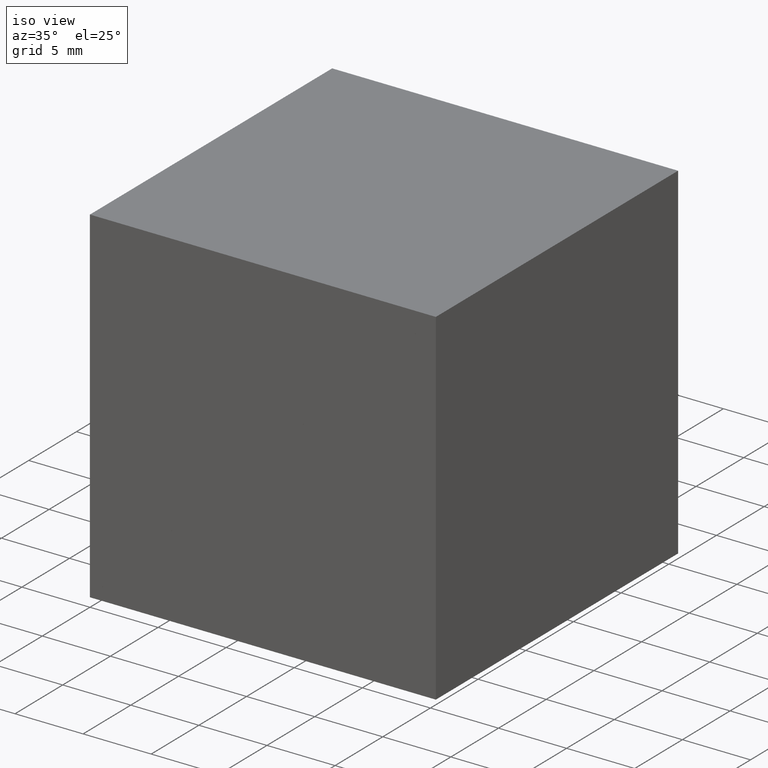
[diagram: clean part render]
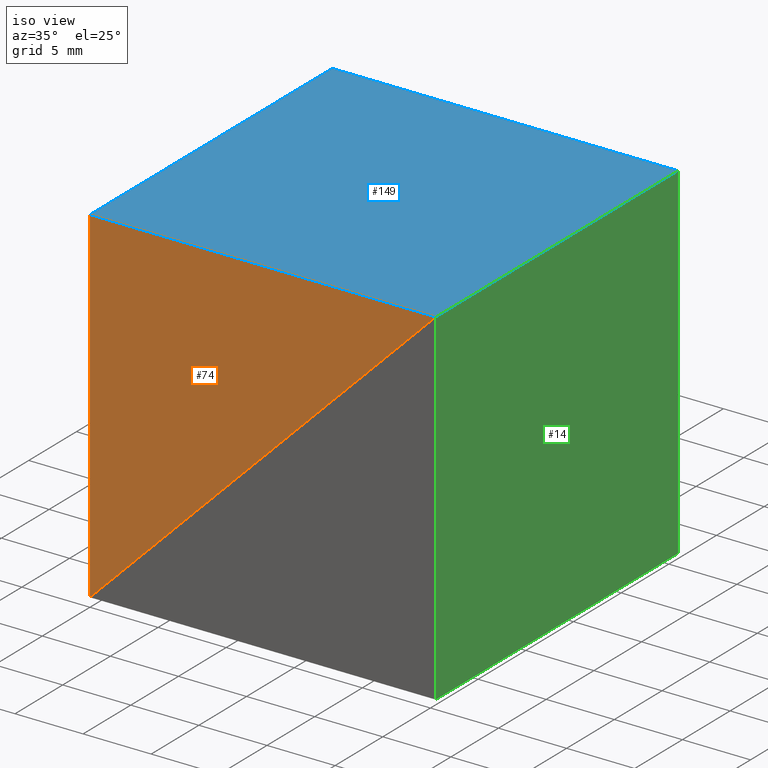
[diagram: same view with three faces highlighted in distinct colors, each labeled with its STEP entity id]
A machine part, iso view with three faces highlighted in distinct colors.
Their STEP definitions:

[orange] entity #74 — the highlighted planar face has unit normal (0, -1, -0).
#9 = CARTESIAN_POINT ( 'NONE',  ( 0.0000000000000000000, 0.0000000000000000000, -25.39999999999999900 ) ) ;
#13 = LINE ( 'NONE', #24, #118 ) ;
#19 = CARTESIAN_POINT ( 'NONE',  ( 25.39999999999999900, 0.0000000000000000000, 0.0000000000000000000 ) ) ;
#24 = CARTESIAN_POINT ( 'NONE',  ( 0.0000000000000000000, 0.0000000000000000000, -25.39999999999999900 ) ) ;
#26 = DIRECTION ( 'NONE',  ( -0.0000000000000000000, -0.0000000000000000000, 1.000000000000000000 ) ) ;
#57 = DIRECTION ( 'NONE',  ( 1.000000000000000000, -0.0000000000000000000, -0.0000000000000000000 ) ) ;
#64 = DIRECTION ( 'NONE',  ( -0.7071067811865474600, -0.0000000000000000000, -0.7071067811865474600 ) ) ;
#68 = VERTEX_POINT ( 'NONE', #19 ) ;
#74 = ADVANCED_FACE ( 'NONE', ( #255 ), #126, .T. ) ;
#77 = LINE ( 'NONE', #168, #130 ) ;
#88 = AXIS2_PLACEMENT_3D ( 'NONE', #205, #91, #263 ) ;
#91 = DIRECTION ( 'NONE',  ( 0.0000000000000000000, -1.000000000000000000, -0.0000000000000000000 ) ) ;
#97 = LINE ( 'NONE', #111, #142 ) ;
#107 = VERTEX_POINT ( 'NONE', #9 ) ;
#108 = EDGE_LOOP ( 'NONE', ( #166, #165, #156 ) ) ;
#111 = CARTESIAN_POINT ( 'NONE',  ( 0.0000000000000000000, 0.0000000000000000000, 0.0000000000000000000 ) ) ;
#118 = VECTOR ( 'NONE', #64, 1000.000000000000100 ) ;
#126 = PLANE ( 'NONE',  #88 ) ;
#129 = EDGE_CURVE ( 'NONE', #212, #68, #77, .T. ) ;
#130 = VECTOR ( 'NONE', #57, 1000.000000000000000 ) ;
#142 = VECTOR ( 'NONE', #26, 1000.000000000000000 ) ;
#156 = ORIENTED_EDGE ( 'NONE', *, *, #213, .F. ) ;
#165 = ORIENTED_EDGE ( 'NONE', *, *, #239, .F. ) ;
#166 = ORIENTED_EDGE ( 'NONE', *, *, #129, .F. ) ;
#168 = CARTESIAN_POINT ( 'NONE',  ( 25.39999999999999900, 0.0000000000000000000, 0.0000000000000000000 ) ) ;
#185 = CARTESIAN_POINT ( 'NONE',  ( 0.0000000000000000000, 0.0000000000000000000, 0.0000000000000000000 ) ) ;
#205 = CARTESIAN_POINT ( 'NONE',  ( 0.0000000000000000000, 0.0000000000000000000, 0.0000000000000000000 ) ) ;
#212 = VERTEX_POINT ( 'NONE', #185 ) ;
#213 = EDGE_CURVE ( 'NONE', #68, #107, #13, .T. ) ;
#239 = EDGE_CURVE ( 'NONE', #107, #212, #97, .T. ) ;
#255 = FACE_OUTER_BOUND ( 'NONE', #108, .T. ) ;
#263 = DIRECTION ( 'NONE',  ( 0.0000000000000000000, 0.0000000000000000000, -1.000000000000000000 ) ) ;

[blue] entity #149 — the highlighted planar face has unit normal (0, 0, -1).
#10 = CARTESIAN_POINT ( 'NONE',  ( 25.39999999999999900, 25.39999999999999900, 0.0000000000000000000 ) ) ;
#16 = ORIENTED_EDGE ( 'NONE', *, *, #129, .T. ) ;
#19 = CARTESIAN_POINT ( 'NONE',  ( 25.39999999999999900, 0.0000000000000000000, 0.0000000000000000000 ) ) ;
#23 = LINE ( 'NONE', #250, #203 ) ;
#36 = ORIENTED_EDGE ( 'NONE', *, *, #122, .F. ) ;
#44 = CARTESIAN_POINT ( 'NONE',  ( 25.39999999999999900, 25.39999999999999900, 0.0000000000000000000 ) ) ;
#46 = VECTOR ( 'NONE', #136, 1000.000000000000000 ) ;
#51 = DIRECTION ( 'NONE',  ( 1.000000000000000000, -0.0000000000000000000, -0.0000000000000000000 ) ) ;
#57 = DIRECTION ( 'NONE',  ( 1.000000000000000000, -0.0000000000000000000, -0.0000000000000000000 ) ) ;
#65 = EDGE_LOOP ( 'NONE', ( #16, #36, #191, #208 ) ) ;
#68 = VERTEX_POINT ( 'NONE', #19 ) ;
#77 = LINE ( 'NONE', #168, #130 ) ;
#121 = DIRECTION ( 'NONE',  ( 0.0000000000000000000, 0.0000000000000000000, -1.000000000000000000 ) ) ;
#122 = EDGE_CURVE ( 'NONE', #254, #68, #23, .T. ) ;
#129 = EDGE_CURVE ( 'NONE', #212, #68, #77, .T. ) ;
#130 = VECTOR ( 'NONE', #57, 1000.000000000000000 ) ;
#136 = DIRECTION ( 'NONE',  ( -0.0000000000000000000, -1.000000000000000000, -0.0000000000000000000 ) ) ;
#148 = VECTOR ( 'NONE', #51, 1000.000000000000000 ) ;
#149 = ADVANCED_FACE ( 'NONE', ( #188 ), #150, .F. ) ;
#150 = PLANE ( 'NONE',  #155 ) ;
#155 = AXIS2_PLACEMENT_3D ( 'NONE', #10, #121, #201 ) ;
#160 = LINE ( 'NONE', #225, #148 ) ;
#161 = CARTESIAN_POINT ( 'NONE',  ( 0.0000000000000000000, 25.39999999999999900, 0.0000000000000000000 ) ) ;
#168 = CARTESIAN_POINT ( 'NONE',  ( 25.39999999999999900, 0.0000000000000000000, 0.0000000000000000000 ) ) ;
#175 = EDGE_CURVE ( 'NONE', #291, #254, #160, .T. ) ;
#185 = CARTESIAN_POINT ( 'NONE',  ( 0.0000000000000000000, 0.0000000000000000000, 0.0000000000000000000 ) ) ;
#188 = FACE_OUTER_BOUND ( 'NONE', #65, .T. ) ;
#191 = ORIENTED_EDGE ( 'NONE', *, *, #175, .F. ) ;
#201 = DIRECTION ( 'NONE',  ( -1.000000000000000000, 0.0000000000000000000, -0.0000000000000000000 ) ) ;
#203 = VECTOR ( 'NONE', #296, 1000.000000000000000 ) ;
#208 = ORIENTED_EDGE ( 'NONE', *, *, #218, .T. ) ;
#212 = VERTEX_POINT ( 'NONE', #185 ) ;
#218 = EDGE_CURVE ( 'NONE', #291, #212, #282, .T. ) ;
#225 = CARTESIAN_POINT ( 'NONE',  ( 25.39999999999999900, 25.39999999999999900, 0.0000000000000000000 ) ) ;
#235 = CARTESIAN_POINT ( 'NONE',  ( 0.0000000000000000000, 25.39999999999999900, 0.0000000000000000000 ) ) ;
#250 = CARTESIAN_POINT ( 'NONE',  ( 25.39999999999999900, 25.39999999999999900, 0.0000000000000000000 ) ) ;
#254 = VERTEX_POINT ( 'NONE', #44 ) ;
#282 = LINE ( 'NONE', #235, #46 ) ;
#291 = VERTEX_POINT ( 'NONE', #161 ) ;
#296 = DIRECTION ( 'NONE',  ( -0.0000000000000000000, -1.000000000000000000, -0.0000000000000000000 ) ) ;

[green] entity #14 — the highlighted planar face has unit normal (1, 0, -0).
#14 = ADVANCED_FACE ( 'NONE', ( #228 ), #285, .T. ) ;
#28 = DIRECTION ( 'NONE',  ( 0.0000000000000000000, 0.0000000000000000000, 1.000000000000000000 ) ) ;
#31 = ORIENTED_EDGE ( 'NONE', *, *, #192, .F. ) ;
#32 = CARTESIAN_POINT ( 'NONE',  ( 25.39999999999999900, 0.0000000000000000000, -25.39999999999999900 ) ) ;
#37 = VERTEX_POINT ( 'NONE', #99 ) ;
#39 = LINE ( 'NONE', #151, #145 ) ;
#61 = ORIENTED_EDGE ( 'NONE', *, *, #226, .T. ) ;
#81 = LINE ( 'NONE', #32, #260 ) ;
#99 = CARTESIAN_POINT ( 'NONE',  ( 25.39999999999999900, 0.0000000000000000000, -25.39999999999999900 ) ) ;
#102 = LINE ( 'NONE', #112, #251 ) ;
#110 = EDGE_CURVE ( 'NONE', #197, #248, #132, .T. ) ;
#112 = CARTESIAN_POINT ( 'NONE',  ( 25.39999999999999900, 25.39999999999999900, -25.39999999999999900 ) ) ;
#132 = LINE ( 'NONE', #171, #193 ) ;
#145 = VECTOR ( 'NONE', #247, 1000.000000000000000 ) ;
#151 = CARTESIAN_POINT ( 'NONE',  ( 25.39999999999999900, 25.39999999999999900, -25.39999999999999900 ) ) ;
#157 = EDGE_CURVE ( 'NONE', #37, #248, #81, .T. ) ;
#164 = CARTESIAN_POINT ( 'NONE',  ( 25.39999999999999900, 0.0000000000000000000, 0.0000000000000000000 ) ) ;
#171 = CARTESIAN_POINT ( 'NONE',  ( 25.39999999999999900, 25.39999999999999900, 0.0000000000000000000 ) ) ;
#173 = CARTESIAN_POINT ( 'NONE',  ( 25.39999999999999900, 25.39999999999999900, 0.0000000000000000000 ) ) ;
#178 = DIRECTION ( 'NONE',  ( 0.0000000000000000000, -1.000000000000000000, 0.0000000000000000000 ) ) ;
#180 = DIRECTION ( 'NONE',  ( 1.000000000000000000, 0.0000000000000000000, -0.0000000000000000000 ) ) ;
#182 = ORIENTED_EDGE ( 'NONE', *, *, #157, .F. ) ;
#192 = EDGE_CURVE ( 'NONE', #233, #37, #39, .T. ) ;
#193 = VECTOR ( 'NONE', #178, 1000.000000000000000 ) ;
#197 = VERTEX_POINT ( 'NONE', #173 ) ;
#226 = EDGE_CURVE ( 'NONE', #233, #197, #102, .T. ) ;
#228 = FACE_OUTER_BOUND ( 'NONE', #277, .T. ) ;
#233 = VERTEX_POINT ( 'NONE', #236 ) ;
#236 = CARTESIAN_POINT ( 'NONE',  ( 25.39999999999999900, 25.39999999999999900, -25.39999999999999900 ) ) ;
#247 = DIRECTION ( 'NONE',  ( 0.0000000000000000000, -1.000000000000000000, 0.0000000000000000000 ) ) ;
#248 = VERTEX_POINT ( 'NONE', #164 ) ;
#251 = VECTOR ( 'NONE', #279, 1000.000000000000000 ) ;
#259 = ORIENTED_EDGE ( 'NONE', *, *, #110, .T. ) ;
#260 = VECTOR ( 'NONE', #28, 1000.000000000000000 ) ;
#261 = AXIS2_PLACEMENT_3D ( 'NONE', #264, #180, #273 ) ;
#264 = CARTESIAN_POINT ( 'NONE',  ( 25.39999999999999900, 25.39999999999999900, -25.39999999999999900 ) ) ;
#273 = DIRECTION ( 'NONE',  ( -0.0000000000000000000, 0.0000000000000000000, -1.000000000000000000 ) ) ;
#277 = EDGE_LOOP ( 'NONE', ( #182, #31, #61, #259 ) ) ;
#279 = DIRECTION ( 'NONE',  ( 0.0000000000000000000, 0.0000000000000000000, 1.000000000000000000 ) ) ;
#285 = PLANE ( 'NONE',  #261 ) ;